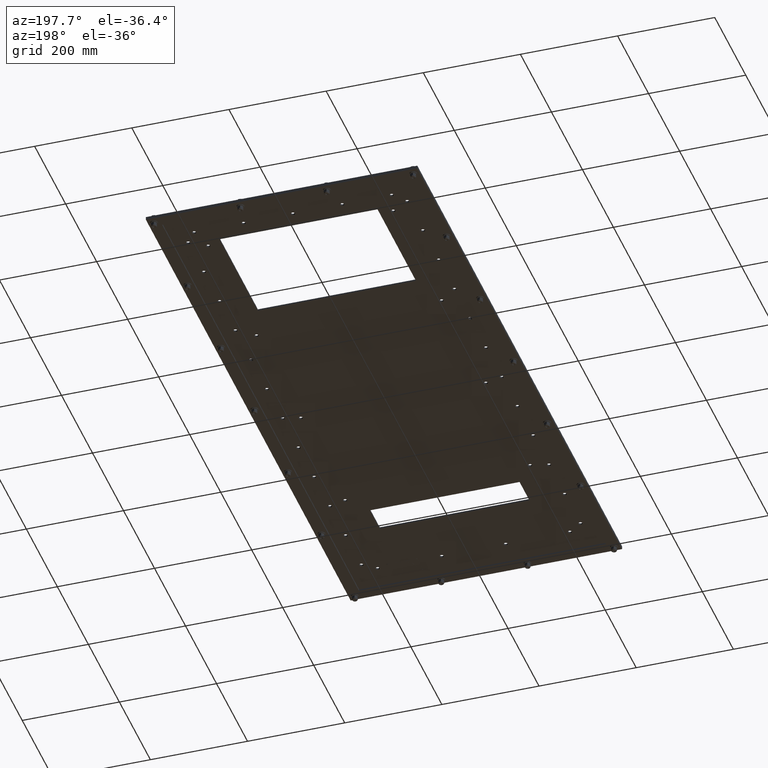
[diagram: clean part render]
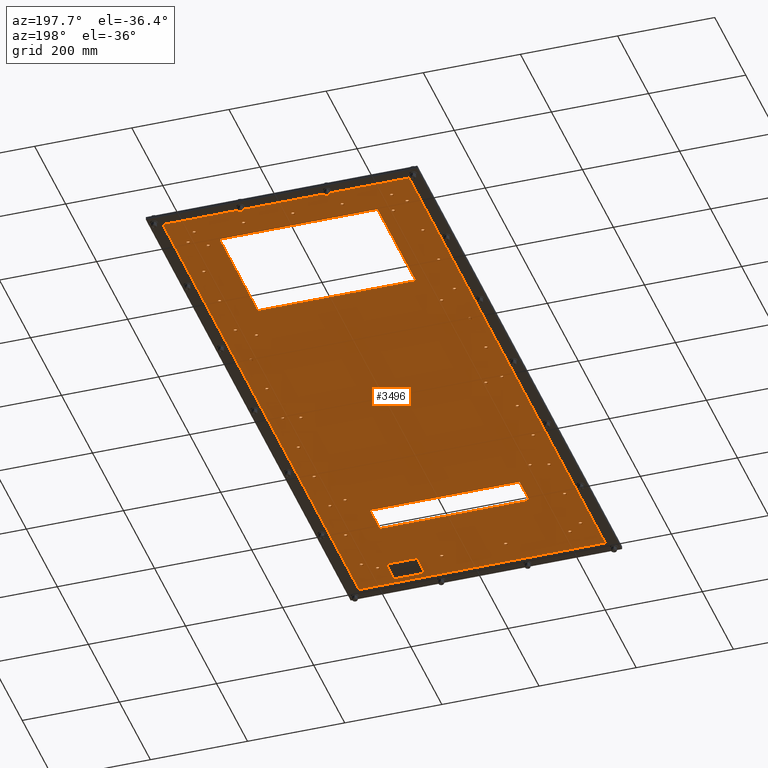
[diagram: same view with one face highlighted and labeled with its STEP entity id]
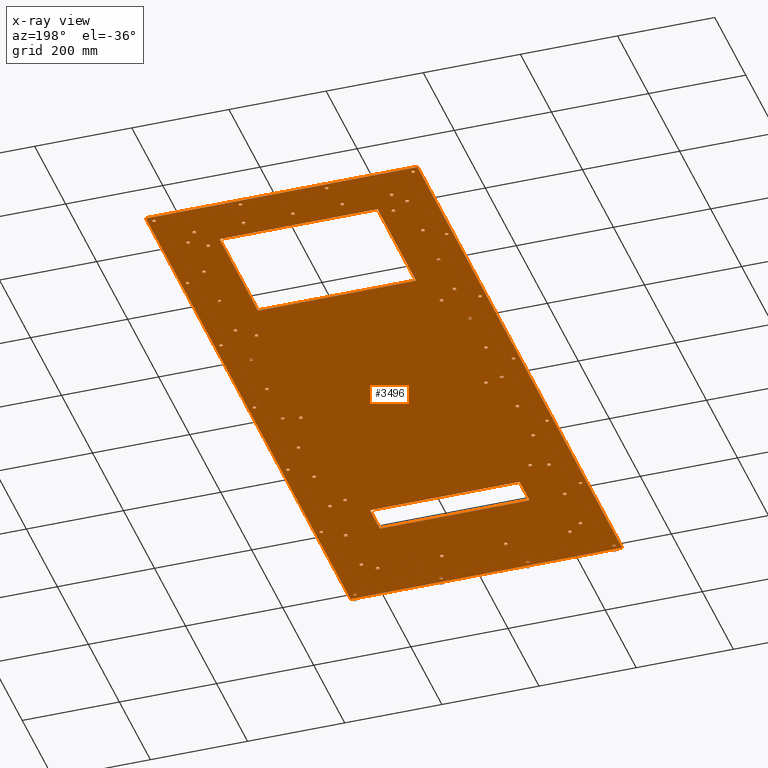
[diagram: x-ray of the same camera — body ghosted, the highlighted face saturated]
A machine part, auxiliary view. The second image highlights one B-rep face of the part: STEP entity #3496.
The next image is the same camera in x-ray: the body ghosted, the highlighted face saturated — about 0% of this face is hidden behind the body in this view.
In plain terms, the highlighted planar face has unit normal (0, 0, 1).
Its self-contained STEP definition (entity closure, byte-faithful):
#173=LINE('',#5165,#326);
#177=LINE('',#5173,#330);
#180=LINE('',#5179,#333);
#183=LINE('',#5184,#336);
#185=LINE('',#5189,#338);
#189=LINE('',#5197,#342);
#192=LINE('',#5203,#345);
#195=LINE('',#5208,#348);
#199=LINE('',#5427,#352);
#203=LINE('',#5434,#356);
#206=LINE('',#5440,#359);
#208=LINE('',#5443,#361);
#326=VECTOR('',#4161,9.75000000000001);
#330=VECTOR('',#4167,12.81);
#333=VECTOR('',#4172,9.75);
#336=VECTOR('',#4177,12.81);
#338=VECTOR('',#4181,2.5);
#342=VECTOR('',#4187,12.13);
#345=VECTOR('',#4192,2.5);
#348=VECTOR('',#4197,12.13);
#352=VECTOR('',#4455,52.);
#356=VECTOR('',#4461,22.);
#359=VECTOR('',#4466,52.);
#361=VECTOR('',#4470,22.);
#492=PLANE('',#3812);
#679=FACE_BOUND('',#1211,.T.);
#680=FACE_BOUND('',#1212,.T.);
#681=FACE_BOUND('',#1213,.T.);
#682=FACE_BOUND('',#1214,.T.);
#683=FACE_BOUND('',#1215,.T.);
#684=FACE_BOUND('',#1216,.T.);
#685=FACE_BOUND('',#1217,.T.);
#686=FACE_BOUND('',#1218,.T.);
#687=FACE_BOUND('',#1219,.T.);
#688=FACE_BOUND('',#1220,.T.);
#689=FACE_BOUND('',#1221,.T.);
#690=FACE_BOUND('',#1222,.T.);
#691=FACE_BOUND('',#1223,.T.);
#692=FACE_BOUND('',#1224,.T.);
#693=FACE_BOUND('',#1225,.T.);
#694=FACE_BOUND('',#1226,.T.);
#695=FACE_BOUND('',#1227,.T.);
#696=FACE_BOUND('',#1228,.T.);
#697=FACE_BOUND('',#1229,.T.);
#698=FACE_BOUND('',#1230,.T.);
#699=FACE_BOUND('',#1231,.T.);
#700=FACE_BOUND('',#1232,.T.);
#701=FACE_BOUND('',#1233,.T.);
#702=FACE_BOUND('',#1234,.T.);
#703=FACE_BOUND('',#1235,.T.);
#704=FACE_BOUND('',#1236,.T.);
#705=FACE_BOUND('',#1237,.T.);
#706=FACE_BOUND('',#1238,.T.);
#707=FACE_BOUND('',#1239,.T.);
#708=FACE_BOUND('',#1240,.T.);
#709=FACE_BOUND('',#1241,.T.);
#710=FACE_BOUND('',#1242,.T.);
#711=FACE_BOUND('',#1243,.T.);
#712=FACE_BOUND('',#1244,.T.);
#713=FACE_BOUND('',#1245,.T.);
#714=FACE_BOUND('',#1246,.T.);
#715=FACE_BOUND('',#1247,.T.);
#716=FACE_BOUND('',#1248,.T.);
#717=FACE_BOUND('',#1249,.T.);
#718=FACE_BOUND('',#1250,.T.);
#719=FACE_BOUND('',#1251,.T.);
#720=FACE_BOUND('',#1252,.T.);
#721=FACE_BOUND('',#1253,.T.);
#722=FACE_BOUND('',#1254,.T.);
#723=FACE_BOUND('',#1255,.T.);
#724=FACE_BOUND('',#1256,.T.);
#725=FACE_BOUND('',#1257,.T.);
#726=FACE_BOUND('',#1258,.T.);
#727=FACE_BOUND('',#1259,.T.);
#728=FACE_BOUND('',#1260,.T.);
#729=FACE_BOUND('',#1261,.T.);
#730=FACE_BOUND('',#1262,.T.);
#731=FACE_BOUND('',#1263,.T.);
#732=FACE_BOUND('',#1264,.T.);
#733=FACE_BOUND('',#1265,.T.);
#734=FACE_BOUND('',#1266,.T.);
#735=FACE_BOUND('',#1267,.T.);
#736=FACE_BOUND('',#1268,.T.);
#737=FACE_BOUND('',#1269,.T.);
#738=FACE_BOUND('',#1270,.T.);
#739=FACE_BOUND('',#1271,.T.);
#900=FACE_OUTER_BOUND('',#1210,.T.);
#1210=EDGE_LOOP('',(#2635,#2636,#2637,#2638));
#1211=EDGE_LOOP('',(#2639));
#1212=EDGE_LOOP('',(#2640));
#1213=EDGE_LOOP('',(#2641));
#1214=EDGE_LOOP('',(#2642));
#1215=EDGE_LOOP('',(#2643));
#1216=EDGE_LOOP('',(#2644));
#1217=EDGE_LOOP('',(#2645));
#1218=EDGE_LOOP('',(#2646));
#1219=EDGE_LOOP('',(#2647));
#1220=EDGE_LOOP('',(#2648));
#1221=EDGE_LOOP('',(#2649));
#1222=EDGE_LOOP('',(#2650));
#1223=EDGE_LOOP('',(#2651));
#1224=EDGE_LOOP('',(#2652));
#1225=EDGE_LOOP('',(#2653));
#1226=EDGE_LOOP('',(#2654));
#1227=EDGE_LOOP('',(#2655));
#1228=EDGE_LOOP('',(#2656,#2657,#2658,#2659));
#1229=EDGE_LOOP('',(#2660,#2661,#2662,#2663));
#1230=EDGE_LOOP('',(#2664));
#1231=EDGE_LOOP('',(#2665));
#1232=EDGE_LOOP('',(#2666));
#1233=EDGE_LOOP('',(#2667));
#1234=EDGE_LOOP('',(#2668));
#1235=EDGE_LOOP('',(#2669));
#1236=EDGE_LOOP('',(#2670));
#1237=EDGE_LOOP('',(#2671));
#1238=EDGE_LOOP('',(#2672));
#1239=EDGE_LOOP('',(#2673));
#1240=EDGE_LOOP('',(#2674));
#1241=EDGE_LOOP('',(#2675));
#1242=EDGE_LOOP('',(#2676));
#1243=EDGE_LOOP('',(#2677));
#1244=EDGE_LOOP('',(#2678));
#1245=EDGE_LOOP('',(#2679));
#1246=EDGE_LOOP('',(#2680));
#1247=EDGE_LOOP('',(#2681));
#1248=EDGE_LOOP('',(#2682));
#1249=EDGE_LOOP('',(#2683));
#1250=EDGE_LOOP('',(#2684));
#1251=EDGE_LOOP('',(#2685));
#1252=EDGE_LOOP('',(#2686));
#1253=EDGE_LOOP('',(#2687));
#1254=EDGE_LOOP('',(#2688));
#1255=EDGE_LOOP('',(#2689));
#1256=EDGE_LOOP('',(#2690));
#1257=EDGE_LOOP('',(#2691));
#1258=EDGE_LOOP('',(#2692));
#1259=EDGE_LOOP('',(#2693));
#1260=EDGE_LOOP('',(#2694));
#1261=EDGE_LOOP('',(#2695));
#1262=EDGE_LOOP('',(#2696));
#1263=EDGE_LOOP('',(#2697));
#1264=EDGE_LOOP('',(#2698));
#1265=EDGE_LOOP('',(#2699));
#1266=EDGE_LOOP('',(#2700));
#1267=EDGE_LOOP('',(#2701));
#1268=EDGE_LOOP('',(#2702));
#1269=EDGE_LOOP('',(#2703));
#1270=EDGE_LOOP('',(#2704));
#1271=EDGE_LOOP('',(#2705));
#1478=CIRCLE('',#3624,0.140625);
#1480=CIRCLE('',#3627,0.140625);
#1482=CIRCLE('',#3630,0.140625);
#1484=CIRCLE('',#3633,0.140625);
#1486=CIRCLE('',#3636,0.140625);
#1488=CIRCLE('',#3639,0.140625);
#1490=CIRCLE('',#3642,0.140625);
#1492=CIRCLE('',#3645,0.140625);
#1494=CIRCLE('',#3648,0.140625);
#1496=CIRCLE('',#3651,0.140625);
#1498=CIRCLE('',#3654,0.140625);
#1500=CIRCLE('',#3657,0.140625);
#1502=CIRCLE('',#3660,0.140625);
#1504=CIRCLE('',#3663,0.140625);
#1506=CIRCLE('',#3666,0.140625);
#1508=CIRCLE('',#3669,0.140625);
#1510=CIRCLE('',#3672,0.140625);
#1511=CIRCLE('',#3682,0.156);
#1513=CIRCLE('',#3685,0.156);
#1515=CIRCLE('',#3688,0.156);
#1517=CIRCLE('',#3691,0.156);
#1519=CIRCLE('',#3694,0.156);
#1521=CIRCLE('',#3697,0.156);
#1523=CIRCLE('',#3700,0.156);
#1525=CIRCLE('',#3703,0.156);
#1527=CIRCLE('',#3706,0.156);
#1529=CIRCLE('',#3709,0.156);
#1531=CIRCLE('',#3712,0.156);
#1533=CIRCLE('',#3715,0.156);
#1535=CIRCLE('',#3718,0.156);
#1537=CIRCLE('',#3721,0.156);
#1539=CIRCLE('',#3724,0.156);
#1541=CIRCLE('',#3727,0.156);
#1543=CIRCLE('',#3730,0.156);
#1545=CIRCLE('',#3733,0.156);
#1547=CIRCLE('',#3736,0.156);
#1549=CIRCLE('',#3739,0.156);
#1551=CIRCLE('',#3742,0.156);
#1553=CIRCLE('',#3745,0.156);
#1555=CIRCLE('',#3748,0.156);
#1557=CIRCLE('',#3751,0.156);
#1559=CIRCLE('',#3754,0.156);
#1561=CIRCLE('',#3757,0.156);
#1563=CIRCLE('',#3760,0.156);
#1565=CIRCLE('',#3763,0.156);
#1567=CIRCLE('',#3766,0.156);
#1569=CIRCLE('',#3769,0.156);
#1571=CIRCLE('',#3772,0.156);
#1573=CIRCLE('',#3775,0.156);
#1575=CIRCLE('',#3778,0.156);
#1577=CIRCLE('',#3781,0.156);
#1579=CIRCLE('',#3784,0.156);
#1581=CIRCLE('',#3787,0.156);
#1583=CIRCLE('',#3790,0.155999999999999);
#1585=CIRCLE('',#3793,0.155999999999999);
#1587=CIRCLE('',#3796,0.155999999999999);
#1589=CIRCLE('',#3799,0.155999999999999);
#1591=CIRCLE('',#3802,0.155999999999999);
#1594=CIRCLE('',#3806,0.140625);
#1690=VERTEX_POINT('',#5080);
#1692=VERTEX_POINT('',#5085);
#1694=VERTEX_POINT('',#5090);
#1696=VERTEX_POINT('',#5095);
#1698=VERTEX_POINT('',#5100);
#1700=VERTEX_POINT('',#5105);
#1702=VERTEX_POINT('',#5110);
#1704=VERTEX_POINT('',#5115);
#1706=VERTEX_POINT('',#5120);
#1708=VERTEX_POINT('',#5125);
#1710=VERTEX_POINT('',#5130);
#1712=VERTEX_POINT('',#5135);
#1714=VERTEX_POINT('',#5140);
#1716=VERTEX_POINT('',#5145);
#1718=VERTEX_POINT('',#5150);
#1720=VERTEX_POINT('',#5155);
#1722=VERTEX_POINT('',#5160);
#1723=VERTEX_POINT('',#5163);
#1724=VERTEX_POINT('',#5164);
#1727=VERTEX_POINT('',#5172);
#1729=VERTEX_POINT('',#5178);
#1731=VERTEX_POINT('',#5187);
#1732=VERTEX_POINT('',#5188);
#1735=VERTEX_POINT('',#5196);
#1737=VERTEX_POINT('',#5202);
#1739=VERTEX_POINT('',#5211);
#1741=VERTEX_POINT('',#5216);
#1743=VERTEX_POINT('',#5221);
#1745=VERTEX_POINT('',#5226);
#1747=VERTEX_POINT('',#5231);
#1749=VERTEX_POINT('',#5236);
#1751=VERTEX_POINT('',#5241);
#1753=VERTEX_POINT('',#5246);
#1755=VERTEX_POINT('',#5251);
#1757=VERTEX_POINT('',#5256);
#1759=VERTEX_POINT('',#5261);
#1761=VERTEX_POINT('',#5266);
#1763=VERTEX_POINT('',#5271);
#1765=VERTEX_POINT('',#5276);
#1767=VERTEX_POINT('',#5281);
#1769=VERTEX_POINT('',#5286);
#1771=VERTEX_POINT('',#5291);
#1773=VERTEX_POINT('',#5296);
#1775=VERTEX_POINT('',#5301);
#1777=VERTEX_POINT('',#5306);
#1779=VERTEX_POINT('',#5311);
#1781=VERTEX_POINT('',#5316);
#1783=VERTEX_POINT('',#5321);
#1785=VERTEX_POINT('',#5326);
#1787=VERTEX_POINT('',#5331);
#1789=VERTEX_POINT('',#5336);
#1791=VERTEX_POINT('',#5341);
#1793=VERTEX_POINT('',#5346);
#1795=VERTEX_POINT('',#5351);
#1797=VERTEX_POINT('',#5356);
#1799=VERTEX_POINT('',#5361);
#1801=VERTEX_POINT('',#5366);
#1803=VERTEX_POINT('',#5371);
#1805=VERTEX_POINT('',#5376);
#1807=VERTEX_POINT('',#5381);
#1809=VERTEX_POINT('',#5386);
#1811=VERTEX_POINT('',#5391);
#1813=VERTEX_POINT('',#5396);
#1815=VERTEX_POINT('',#5401);
#1817=VERTEX_POINT('',#5406);
#1819=VERTEX_POINT('',#5411);
#1822=VERTEX_POINT('',#5418);
#1825=VERTEX_POINT('',#5424);
#1826=VERTEX_POINT('',#5426);
#1828=VERTEX_POINT('',#5432);
#1830=VERTEX_POINT('',#5438);
#2008=EDGE_CURVE('',#1690,#1690,#1478,.T.);
#2010=EDGE_CURVE('',#1692,#1692,#1480,.T.);
#2012=EDGE_CURVE('',#1694,#1694,#1482,.T.);
#2014=EDGE_CURVE('',#1696,#1696,#1484,.T.);
#2016=EDGE_CURVE('',#1698,#1698,#1486,.T.);
#2018=EDGE_CURVE('',#1700,#1700,#1488,.T.);
#2020=EDGE_CURVE('',#1702,#1702,#1490,.T.);
#2022=EDGE_CURVE('',#1704,#1704,#1492,.T.);
#2024=EDGE_CURVE('',#1706,#1706,#1494,.T.);
#2026=EDGE_CURVE('',#1708,#1708,#1496,.T.);
#2028=EDGE_CURVE('',#1710,#1710,#1498,.T.);
#2030=EDGE_CURVE('',#1712,#1712,#1500,.T.);
#2032=EDGE_CURVE('',#1714,#1714,#1502,.T.);
#2034=EDGE_CURVE('',#1716,#1716,#1504,.T.);
#2036=EDGE_CURVE('',#1718,#1718,#1506,.T.);
#2038=EDGE_CURVE('',#1720,#1720,#1508,.T.);
#2040=EDGE_CURVE('',#1722,#1722,#1510,.T.);
#2041=EDGE_CURVE('',#1723,#1724,#173,.T.);
#2045=EDGE_CURVE('',#1724,#1727,#177,.T.);
#2048=EDGE_CURVE('',#1727,#1729,#180,.T.);
#2051=EDGE_CURVE('',#1729,#1723,#183,.T.);
#2053=EDGE_CURVE('',#1731,#1732,#185,.T.);
#2057=EDGE_CURVE('',#1732,#1735,#189,.T.);
#2060=EDGE_CURVE('',#1735,#1737,#192,.T.);
#2063=EDGE_CURVE('',#1737,#1731,#195,.T.);
#2065=EDGE_CURVE('',#1739,#1739,#1511,.T.);
#2067=EDGE_CURVE('',#1741,#1741,#1513,.T.);
#2069=EDGE_CURVE('',#1743,#1743,#1515,.T.);
#2071=EDGE_CURVE('',#1745,#1745,#1517,.T.);
#2073=EDGE_CURVE('',#1747,#1747,#1519,.T.);
#2075=EDGE_CURVE('',#1749,#1749,#1521,.T.);
#2077=EDGE_CURVE('',#1751,#1751,#1523,.T.);
#2079=EDGE_CURVE('',#1753,#1753,#1525,.T.);
#2081=EDGE_CURVE('',#1755,#1755,#1527,.T.);
#2083=EDGE_CURVE('',#1757,#1757,#1529,.T.);
#2085=EDGE_CURVE('',#1759,#1759,#1531,.T.);
#2087=EDGE_CURVE('',#1761,#1761,#1533,.T.);
#2089=EDGE_CURVE('',#1763,#1763,#1535,.T.);
#2091=EDGE_CURVE('',#1765,#1765,#1537,.T.);
#2093=EDGE_CURVE('',#1767,#1767,#1539,.T.);
#2095=EDGE_CURVE('',#1769,#1769,#1541,.T.);
#2097=EDGE_CURVE('',#1771,#1771,#1543,.T.);
#2099=EDGE_CURVE('',#1773,#1773,#1545,.T.);
#2101=EDGE_CURVE('',#1775,#1775,#1547,.T.);
#2103=EDGE_CURVE('',#1777,#1777,#1549,.T.);
#2105=EDGE_CURVE('',#1779,#1779,#1551,.T.);
#2107=EDGE_CURVE('',#1781,#1781,#1553,.T.);
#2109=EDGE_CURVE('',#1783,#1783,#1555,.T.);
#2111=EDGE_CURVE('',#1785,#1785,#1557,.T.);
#2113=EDGE_CURVE('',#1787,#1787,#1559,.T.);
#2115=EDGE_CURVE('',#1789,#1789,#1561,.T.);
#2117=EDGE_CURVE('',#1791,#1791,#1563,.T.);
#2119=EDGE_CURVE('',#1793,#1793,#1565,.T.);
#2121=EDGE_CURVE('',#1795,#1795,#1567,.T.);
#2123=EDGE_CURVE('',#1797,#1797,#1569,.T.);
#2125=EDGE_CURVE('',#1799,#1799,#1571,.T.);
#2127=EDGE_CURVE('',#1801,#1801,#1573,.T.);
#2129=EDGE_CURVE('',#1803,#1803,#1575,.T.);
#2131=EDGE_CURVE('',#1805,#1805,#1577,.T.);
#2133=EDGE_CURVE('',#1807,#1807,#1579,.T.);
#2135=EDGE_CURVE('',#1809,#1809,#1581,.T.);
#2137=EDGE_CURVE('',#1811,#1811,#1583,.T.);
#2139=EDGE_CURVE('',#1813,#1813,#1585,.T.);
#2141=EDGE_CURVE('',#1815,#1815,#1587,.T.);
#2143=EDGE_CURVE('',#1817,#1817,#1589,.T.);
#2145=EDGE_CURVE('',#1819,#1819,#1591,.T.);
#2148=EDGE_CURVE('',#1822,#1822,#1594,.T.);
#2151=EDGE_CURVE('',#1826,#1825,#199,.T.);
#2155=EDGE_CURVE('',#1825,#1828,#203,.T.);
#2158=EDGE_CURVE('',#1828,#1830,#206,.T.);
#2160=EDGE_CURVE('',#1830,#1826,#208,.T.);
#2635=ORIENTED_EDGE('',*,*,#2160,.T.);
#2636=ORIENTED_EDGE('',*,*,#2151,.T.);
#2637=ORIENTED_EDGE('',*,*,#2155,.T.);
#2638=ORIENTED_EDGE('',*,*,#2158,.T.);
#2639=ORIENTED_EDGE('',*,*,#2008,.T.);
#2640=ORIENTED_EDGE('',*,*,#2010,.T.);
#2641=ORIENTED_EDGE('',*,*,#2012,.T.);
#2642=ORIENTED_EDGE('',*,*,#2014,.T.);
#2643=ORIENTED_EDGE('',*,*,#2016,.T.);
#2644=ORIENTED_EDGE('',*,*,#2018,.T.);
#2645=ORIENTED_EDGE('',*,*,#2020,.T.);
#2646=ORIENTED_EDGE('',*,*,#2022,.T.);
#2647=ORIENTED_EDGE('',*,*,#2024,.T.);
#2648=ORIENTED_EDGE('',*,*,#2026,.T.);
#2649=ORIENTED_EDGE('',*,*,#2028,.T.);
#2650=ORIENTED_EDGE('',*,*,#2030,.T.);
#2651=ORIENTED_EDGE('',*,*,#2032,.T.);
#2652=ORIENTED_EDGE('',*,*,#2034,.T.);
#2653=ORIENTED_EDGE('',*,*,#2036,.T.);
#2654=ORIENTED_EDGE('',*,*,#2038,.T.);
#2655=ORIENTED_EDGE('',*,*,#2040,.T.);
#2656=ORIENTED_EDGE('',*,*,#2041,.T.);
#2657=ORIENTED_EDGE('',*,*,#2045,.T.);
#2658=ORIENTED_EDGE('',*,*,#2048,.T.);
#2659=ORIENTED_EDGE('',*,*,#2051,.T.);
#2660=ORIENTED_EDGE('',*,*,#2053,.T.);
#2661=ORIENTED_EDGE('',*,*,#2057,.T.);
#2662=ORIENTED_EDGE('',*,*,#2060,.T.);
#2663=ORIENTED_EDGE('',*,*,#2063,.T.);
#2664=ORIENTED_EDGE('',*,*,#2065,.T.);
#2665=ORIENTED_EDGE('',*,*,#2067,.T.);
#2666=ORIENTED_EDGE('',*,*,#2069,.T.);
#2667=ORIENTED_EDGE('',*,*,#2071,.T.);
#2668=ORIENTED_EDGE('',*,*,#2073,.T.);
#2669=ORIENTED_EDGE('',*,*,#2075,.T.);
#2670=ORIENTED_EDGE('',*,*,#2077,.T.);
#2671=ORIENTED_EDGE('',*,*,#2079,.T.);
#2672=ORIENTED_EDGE('',*,*,#2081,.T.);
#2673=ORIENTED_EDGE('',*,*,#2083,.T.);
#2674=ORIENTED_EDGE('',*,*,#2085,.T.);
#2675=ORIENTED_EDGE('',*,*,#2087,.T.);
#2676=ORIENTED_EDGE('',*,*,#2089,.T.);
#2677=ORIENTED_EDGE('',*,*,#2091,.T.);
#2678=ORIENTED_EDGE('',*,*,#2093,.T.);
#2679=ORIENTED_EDGE('',*,*,#2095,.T.);
#2680=ORIENTED_EDGE('',*,*,#2097,.T.);
#2681=ORIENTED_EDGE('',*,*,#2099,.T.);
#2682=ORIENTED_EDGE('',*,*,#2101,.T.);
#2683=ORIENTED_EDGE('',*,*,#2103,.T.);
#2684=ORIENTED_EDGE('',*,*,#2105,.T.);
#2685=ORIENTED_EDGE('',*,*,#2107,.T.);
#2686=ORIENTED_EDGE('',*,*,#2109,.T.);
#2687=ORIENTED_EDGE('',*,*,#2111,.T.);
#2688=ORIENTED_EDGE('',*,*,#2113,.T.);
#2689=ORIENTED_EDGE('',*,*,#2115,.T.);
#2690=ORIENTED_EDGE('',*,*,#2117,.T.);
#2691=ORIENTED_EDGE('',*,*,#2119,.T.);
#2692=ORIENTED_EDGE('',*,*,#2121,.T.);
#2693=ORIENTED_EDGE('',*,*,#2123,.T.);
#2694=ORIENTED_EDGE('',*,*,#2125,.T.);
#2695=ORIENTED_EDGE('',*,*,#2127,.T.);
#2696=ORIENTED_EDGE('',*,*,#2129,.T.);
#2697=ORIENTED_EDGE('',*,*,#2131,.T.);
#2698=ORIENTED_EDGE('',*,*,#2133,.T.);
#2699=ORIENTED_EDGE('',*,*,#2135,.T.);
#2700=ORIENTED_EDGE('',*,*,#2137,.T.);
#2701=ORIENTED_EDGE('',*,*,#2139,.T.);
#2702=ORIENTED_EDGE('',*,*,#2141,.T.);
#2703=ORIENTED_EDGE('',*,*,#2143,.T.);
#2704=ORIENTED_EDGE('',*,*,#2145,.T.);
#2705=ORIENTED_EDGE('',*,*,#2148,.T.);
#3496=ADVANCED_FACE('',(#900,#679,#680,#681,#682,#683,#684,#685,#686,#687,
#688,#689,#690,#691,#692,#693,#694,#695,#696,#697,#698,#699,#700,#701,#702,
#703,#704,#705,#706,#707,#708,#709,#710,#711,#712,#713,#714,#715,#716,#717,
#718,#719,#720,#721,#722,#723,#724,#725,#726,#727,#728,#729,#730,#731,#732,
#733,#734,#735,#736,#737,#738,#739),#492,.F.);
#3624=AXIS2_PLACEMENT_3D('',#5081,#4061,#4062);
#3627=AXIS2_PLACEMENT_3D('',#5086,#4067,#4068);
#3630=AXIS2_PLACEMENT_3D('',#5091,#4073,#4074);
#3633=AXIS2_PLACEMENT_3D('',#5096,#4079,#4080);
#3636=AXIS2_PLACEMENT_3D('',#5101,#4085,#4086);
#3639=AXIS2_PLACEMENT_3D('',#5106,#4091,#4092);
#3642=AXIS2_PLACEMENT_3D('',#5111,#4097,#4098);
#3645=AXIS2_PLACEMENT_3D('',#5116,#4103,#4104);
#3648=AXIS2_PLACEMENT_3D('',#5121,#4109,#4110);
#3651=AXIS2_PLACEMENT_3D('',#5126,#4115,#4116);
#3654=AXIS2_PLACEMENT_3D('',#5131,#4121,#4122);
#3657=AXIS2_PLACEMENT_3D('',#5136,#4127,#4128);
#3660=AXIS2_PLACEMENT_3D('',#5141,#4133,#4134);
#3663=AXIS2_PLACEMENT_3D('',#5146,#4139,#4140);
#3666=AXIS2_PLACEMENT_3D('',#5151,#4145,#4146);
#3669=AXIS2_PLACEMENT_3D('',#5156,#4151,#4152);
#3672=AXIS2_PLACEMENT_3D('',#5161,#4157,#4158);
#3682=AXIS2_PLACEMENT_3D('',#5212,#4201,#4202);
#3685=AXIS2_PLACEMENT_3D('',#5217,#4207,#4208);
#3688=AXIS2_PLACEMENT_3D('',#5222,#4213,#4214);
#3691=AXIS2_PLACEMENT_3D('',#5227,#4219,#4220);
#3694=AXIS2_PLACEMENT_3D('',#5232,#4225,#4226);
#3697=AXIS2_PLACEMENT_3D('',#5237,#4231,#4232);
#3700=AXIS2_PLACEMENT_3D('',#5242,#4237,#4238);
#3703=AXIS2_PLACEMENT_3D('',#5247,#4243,#4244);
#3706=AXIS2_PLACEMENT_3D('',#5252,#4249,#4250);
#3709=AXIS2_PLACEMENT_3D('',#5257,#4255,#4256);
#3712=AXIS2_PLACEMENT_3D('',#5262,#4261,#4262);
#3715=AXIS2_PLACEMENT_3D('',#5267,#4267,#4268);
#3718=AXIS2_PLACEMENT_3D('',#5272,#4273,#4274);
#3721=AXIS2_PLACEMENT_3D('',#5277,#4279,#4280);
#3724=AXIS2_PLACEMENT_3D('',#5282,#4285,#4286);
#3727=AXIS2_PLACEMENT_3D('',#5287,#4291,#4292);
#3730=AXIS2_PLACEMENT_3D('',#5292,#4297,#4298);
#3733=AXIS2_PLACEMENT_3D('',#5297,#4303,#4304);
#3736=AXIS2_PLACEMENT_3D('',#5302,#4309,#4310);
#3739=AXIS2_PLACEMENT_3D('',#5307,#4315,#4316);
#3742=AXIS2_PLACEMENT_3D('',#5312,#4321,#4322);
#3745=AXIS2_PLACEMENT_3D('',#5317,#4327,#4328);
#3748=AXIS2_PLACEMENT_3D('',#5322,#4333,#4334);
#3751=AXIS2_PLACEMENT_3D('',#5327,#4339,#4340);
#3754=AXIS2_PLACEMENT_3D('',#5332,#4345,#4346);
#3757=AXIS2_PLACEMENT_3D('',#5337,#4351,#4352);
#3760=AXIS2_PLACEMENT_3D('',#5342,#4357,#4358);
#3763=AXIS2_PLACEMENT_3D('',#5347,#4363,#4364);
#3766=AXIS2_PLACEMENT_3D('',#5352,#4369,#4370);
#3769=AXIS2_PLACEMENT_3D('',#5357,#4375,#4376);
#3772=AXIS2_PLACEMENT_3D('',#5362,#4381,#4382);
#3775=AXIS2_PLACEMENT_3D('',#5367,#4387,#4388);
#3778=AXIS2_PLACEMENT_3D('',#5372,#4393,#4394);
#3781=AXIS2_PLACEMENT_3D('',#5377,#4399,#4400);
#3784=AXIS2_PLACEMENT_3D('',#5382,#4405,#4406);
#3787=AXIS2_PLACEMENT_3D('',#5387,#4411,#4412);
#3790=AXIS2_PLACEMENT_3D('',#5392,#4417,#4418);
#3793=AXIS2_PLACEMENT_3D('',#5397,#4423,#4424);
#3796=AXIS2_PLACEMENT_3D('',#5402,#4429,#4430);
#3799=AXIS2_PLACEMENT_3D('',#5407,#4435,#4436);
#3802=AXIS2_PLACEMENT_3D('',#5412,#4441,#4442);
#3806=AXIS2_PLACEMENT_3D('',#5419,#4449,#4450);
#3812=AXIS2_PLACEMENT_3D('',#5445,#4473,#4474);
#4061=DIRECTION('center_axis',(0.,0.,1.));
#4062=DIRECTION('ref_axis',(1.,0.,0.));
#4067=DIRECTION('center_axis',(0.,0.,1.));
#4068=DIRECTION('ref_axis',(1.,0.,0.));
#4073=DIRECTION('center_axis',(0.,0.,1.));
#4074=DIRECTION('ref_axis',(1.,0.,0.));
#4079=DIRECTION('center_axis',(0.,0.,1.));
#4080=DIRECTION('ref_axis',(1.,0.,0.));
#4085=DIRECTION('center_axis',(0.,0.,1.));
#4086=DIRECTION('ref_axis',(1.,0.,0.));
#4091=DIRECTION('center_axis',(0.,0.,1.));
#4092=DIRECTION('ref_axis',(1.,0.,0.));
#4097=DIRECTION('center_axis',(0.,0.,1.));
#4098=DIRECTION('ref_axis',(1.,0.,0.));
#4103=DIRECTION('center_axis',(0.,0.,1.));
#4104=DIRECTION('ref_axis',(1.,0.,0.));
#4109=DIRECTION('center_axis',(0.,0.,1.));
#4110=DIRECTION('ref_axis',(1.,0.,0.));
#4115=DIRECTION('center_axis',(0.,0.,1.));
#4116=DIRECTION('ref_axis',(1.,0.,0.));
#4121=DIRECTION('center_axis',(0.,0.,1.));
#4122=DIRECTION('ref_axis',(1.,0.,0.));
#4127=DIRECTION('center_axis',(0.,0.,1.));
#4128=DIRECTION('ref_axis',(1.,0.,0.));
#4133=DIRECTION('center_axis',(0.,0.,1.));
#4134=DIRECTION('ref_axis',(1.,0.,0.));
#4139=DIRECTION('center_axis',(0.,0.,1.));
#4140=DIRECTION('ref_axis',(1.,0.,0.));
#4145=DIRECTION('center_axis',(0.,0.,1.));
#4146=DIRECTION('ref_axis',(1.,0.,0.));
#4151=DIRECTION('center_axis',(0.,0.,1.));
#4152=DIRECTION('ref_axis',(1.,0.,0.));
#4157=DIRECTION('center_axis',(0.,0.,1.));
#4158=DIRECTION('ref_axis',(1.,0.,0.));
#4161=DIRECTION('',(0.,-1.,0.));
#4167=DIRECTION('',(1.,0.,0.));
#4172=DIRECTION('',(0.,1.,0.));
#4177=DIRECTION('',(-1.,4.36754464560844E-16,0.));
#4181=DIRECTION('',(2.79741234551221E-16,-1.,0.));
#4187=DIRECTION('',(1.,0.,0.));
#4192=DIRECTION('',(0.,1.,0.));
#4197=DIRECTION('',(-1.,0.,0.));
#4201=DIRECTION('center_axis',(0.,0.,1.));
#4202=DIRECTION('ref_axis',(-1.,0.,0.));
#4207=DIRECTION('center_axis',(0.,0.,1.));
#4208=DIRECTION('ref_axis',(-1.,0.,0.));
#4213=DIRECTION('center_axis',(0.,0.,1.));
#4214=DIRECTION('ref_axis',(-1.,0.,0.));
#4219=DIRECTION('center_axis',(0.,0.,1.));
#4220=DIRECTION('ref_axis',(-1.,0.,0.));
#4225=DIRECTION('center_axis',(0.,0.,1.));
#4226=DIRECTION('ref_axis',(-1.,0.,0.));
#4231=DIRECTION('center_axis',(0.,0.,1.));
#4232=DIRECTION('ref_axis',(-1.,0.,0.));
#4237=DIRECTION('center_axis',(0.,0.,1.));
#4238=DIRECTION('ref_axis',(-1.,0.,0.));
#4243=DIRECTION('center_axis',(0.,0.,1.));
#4244=DIRECTION('ref_axis',(-1.,0.,0.));
#4249=DIRECTION('center_axis',(0.,0.,1.));
#4250=DIRECTION('ref_axis',(-1.,0.,0.));
#4255=DIRECTION('center_axis',(0.,0.,1.));
#4256=DIRECTION('ref_axis',(-1.,0.,0.));
#4261=DIRECTION('center_axis',(0.,0.,1.));
#4262=DIRECTION('ref_axis',(-1.,0.,0.));
#4267=DIRECTION('center_axis',(0.,0.,1.));
#4268=DIRECTION('ref_axis',(-1.,0.,0.));
#4273=DIRECTION('center_axis',(0.,0.,1.));
#4274=DIRECTION('ref_axis',(-1.,0.,0.));
#4279=DIRECTION('center_axis',(0.,0.,1.));
#4280=DIRECTION('ref_axis',(-1.,0.,0.));
#4285=DIRECTION('center_axis',(0.,0.,1.));
#4286=DIRECTION('ref_axis',(-1.,0.,0.));
#4291=DIRECTION('center_axis',(0.,0.,1.));
#4292=DIRECTION('ref_axis',(-1.,0.,0.));
#4297=DIRECTION('center_axis',(0.,0.,1.));
#4298=DIRECTION('ref_axis',(-1.,0.,0.));
#4303=DIRECTION('center_axis',(0.,0.,1.));
#4304=DIRECTION('ref_axis',(-1.,0.,0.));
#4309=DIRECTION('center_axis',(0.,0.,1.));
#4310=DIRECTION('ref_axis',(-1.,0.,0.));
#4315=DIRECTION('center_axis',(0.,0.,1.));
#4316=DIRECTION('ref_axis',(-1.,0.,0.));
#4321=DIRECTION('center_axis',(0.,0.,1.));
#4322=DIRECTION('ref_axis',(-1.,0.,0.));
#4327=DIRECTION('center_axis',(0.,0.,1.));
#4328=DIRECTION('ref_axis',(-1.,0.,0.));
#4333=DIRECTION('center_axis',(0.,0.,1.));
#4334=DIRECTION('ref_axis',(-1.,0.,0.));
#4339=DIRECTION('center_axis',(0.,0.,1.));
#4340=DIRECTION('ref_axis',(-1.,0.,0.));
#4345=DIRECTION('center_axis',(0.,0.,1.));
#4346=DIRECTION('ref_axis',(-1.,0.,0.));
#4351=DIRECTION('center_axis',(0.,0.,1.));
#4352=DIRECTION('ref_axis',(-1.,0.,0.));
#4357=DIRECTION('center_axis',(0.,0.,1.));
#4358=DIRECTION('ref_axis',(-1.,0.,0.));
#4363=DIRECTION('center_axis',(0.,0.,1.));
#4364=DIRECTION('ref_axis',(-1.,0.,0.));
#4369=DIRECTION('center_axis',(0.,0.,1.));
#4370=DIRECTION('ref_axis',(-1.,0.,0.));
#4375=DIRECTION('center_axis',(0.,0.,1.));
#4376=DIRECTION('ref_axis',(-1.,0.,0.));
#4381=DIRECTION('center_axis',(0.,0.,1.));
#4382=DIRECTION('ref_axis',(-1.,0.,0.));
#4387=DIRECTION('center_axis',(0.,0.,1.));
#4388=DIRECTION('ref_axis',(-1.,0.,0.));
#4393=DIRECTION('center_axis',(0.,0.,1.));
#4394=DIRECTION('ref_axis',(-1.,0.,0.));
#4399=DIRECTION('center_axis',(0.,0.,1.));
#4400=DIRECTION('ref_axis',(-1.,0.,0.));
#4405=DIRECTION('center_axis',(0.,0.,1.));
#4406=DIRECTION('ref_axis',(-1.,0.,0.));
#4411=DIRECTION('center_axis',(0.,0.,1.));
#4412=DIRECTION('ref_axis',(-1.,0.,0.));
#4417=DIRECTION('center_axis',(0.,0.,1.));
#4418=DIRECTION('ref_axis',(-1.,0.,0.));
#4423=DIRECTION('center_axis',(0.,0.,1.));
#4424=DIRECTION('ref_axis',(-1.,0.,0.));
#4429=DIRECTION('center_axis',(0.,0.,1.));
#4430=DIRECTION('ref_axis',(-1.,0.,0.));
#4435=DIRECTION('center_axis',(0.,0.,1.));
#4436=DIRECTION('ref_axis',(-1.,0.,0.));
#4441=DIRECTION('center_axis',(0.,0.,1.));
#4442=DIRECTION('ref_axis',(-1.,0.,0.));
#4449=DIRECTION('center_axis',(0.,0.,1.));
#4450=DIRECTION('ref_axis',(1.,0.,0.));
#4455=DIRECTION('',(5.37963912598501E-17,-1.,0.));
#4461=DIRECTION('',(-1.,0.,0.));
#4466=DIRECTION('',(-2.151855650394E-16,1.,0.));
#4470=DIRECTION('',(1.,0.,0.));
#4473=DIRECTION('center_axis',(0.,0.,1.));
#4474=DIRECTION('ref_axis',(1.,0.,0.));
#5080=CARTESIAN_POINT('',(10.640625,-25.5,0.));
#5081=CARTESIAN_POINT('Origin',(10.5,-25.5,0.));
#5085=CARTESIAN_POINT('',(3.640625,-25.5,0.));
#5086=CARTESIAN_POINT('Origin',(3.5,-25.5,0.));
#5090=CARTESIAN_POINT('',(-3.359375,-25.5,0.));
#5091=CARTESIAN_POINT('Origin',(-3.5,-25.5,0.));
#5095=CARTESIAN_POINT('',(-10.359375,-25.5,0.));
#5096=CARTESIAN_POINT('Origin',(-10.5,-25.5,0.));
#5100=CARTESIAN_POINT('',(10.640625,-17.,0.));
#5101=CARTESIAN_POINT('Origin',(10.5,-17.,0.));
#5105=CARTESIAN_POINT('',(-10.359375,-17.,0.));
#5106=CARTESIAN_POINT('Origin',(-10.5,-17.,0.));
#5110=CARTESIAN_POINT('',(10.640625,-8.5,0.));
#5111=CARTESIAN_POINT('Origin',(10.5,-8.5,0.));
#5115=CARTESIAN_POINT('',(-10.359375,-8.5,0.));
#5116=CARTESIAN_POINT('Origin',(-10.5,-8.5,0.));
#5120=CARTESIAN_POINT('',(10.640625,0.,0.));
#5121=CARTESIAN_POINT('Origin',(10.5,0.,0.));
#5125=CARTESIAN_POINT('',(-10.359375,0.,0.));
#5126=CARTESIAN_POINT('Origin',(-10.5,0.,0.));
#5130=CARTESIAN_POINT('',(10.640625,8.5,0.));
#5131=CARTESIAN_POINT('Origin',(10.5,8.5,0.));
#5135=CARTESIAN_POINT('',(-10.359375,8.5,0.));
#5136=CARTESIAN_POINT('Origin',(-10.5,8.5,0.));
#5140=CARTESIAN_POINT('',(10.640625,17.,0.));
#5141=CARTESIAN_POINT('Origin',(10.5,17.,0.));
#5145=CARTESIAN_POINT('',(-10.359375,17.,0.));
#5146=CARTESIAN_POINT('Origin',(-10.5,17.,0.));
#5150=CARTESIAN_POINT('',(10.640625,25.5,0.));
#5151=CARTESIAN_POINT('Origin',(10.5,25.5,0.));
#5155=CARTESIAN_POINT('',(3.64062499999999,25.5,0.));
#5156=CARTESIAN_POINT('Origin',(3.49999999999999,25.5,0.));
#5160=CARTESIAN_POINT('',(-3.35937500000001,25.5,0.));
#5161=CARTESIAN_POINT('Origin',(-3.50000000000001,25.5,0.));
#5163=CARTESIAN_POINT('',(-6.4,21.69,-2.18547839493141E-17));
#5164=CARTESIAN_POINT('',(-6.4,11.94,-2.18547839493141E-17));
#5165=CARTESIAN_POINT('',(-6.4,10.845,0.));
#5172=CARTESIAN_POINT('',(6.41,11.94,-2.18547839493141E-17));
#5173=CARTESIAN_POINT('',(-3.2,11.94,0.));
#5178=CARTESIAN_POINT('',(6.41,21.69,-2.18547839493141E-17));
#5179=CARTESIAN_POINT('',(6.41,5.97,0.));
#5184=CARTESIAN_POINT('',(3.205,21.69,0.));
#5187=CARTESIAN_POINT('',(-6.06,-15.44,-4.37095678986282E-17));
#5188=CARTESIAN_POINT('',(-6.05999999999999,-17.94,-4.37095678986282E-17));
#5189=CARTESIAN_POINT('',(-6.06,-7.72,0.));
#5196=CARTESIAN_POINT('',(6.07000000000001,-17.94,-4.37095678986282E-17));
#5197=CARTESIAN_POINT('',(-3.03,-17.94,0.));
#5202=CARTESIAN_POINT('',(6.07000000000001,-15.44,-4.37095678986282E-17));
#5203=CARTESIAN_POINT('',(6.07000000000001,-8.97,0.));
#5208=CARTESIAN_POINT('',(3.035,-15.44,0.));
#5211=CARTESIAN_POINT('',(7.946,-22.81,0.));
#5212=CARTESIAN_POINT('Origin',(7.79,-22.81,0.));
#5216=CARTESIAN_POINT('',(2.756,-22.81,0.));
#5217=CARTESIAN_POINT('Origin',(2.6,-22.81,0.));
#5221=CARTESIAN_POINT('',(-2.434,-22.81,0.));
#5222=CARTESIAN_POINT('Origin',(-2.59,-22.81,0.));
#5226=CARTESIAN_POINT('',(-7.624,-22.81,0.));
#5227=CARTESIAN_POINT('Origin',(-7.78,-22.81,0.));
#5231=CARTESIAN_POINT('',(7.65600000000006,21.13,0.));
#5232=CARTESIAN_POINT('Origin',(7.50000000000006,21.13,0.));
#5236=CARTESIAN_POINT('',(-7.34399999999987,21.13,0.));
#5237=CARTESIAN_POINT('Origin',(-7.49999999999987,21.13,0.));
#5241=CARTESIAN_POINT('',(7.65600000000006,8.88,0.));
#5242=CARTESIAN_POINT('Origin',(7.50000000000007,8.88,0.));
#5246=CARTESIAN_POINT('',(-7.34399999999987,8.87999999999999,0.));
#5247=CARTESIAN_POINT('Origin',(-7.49999999999987,8.87999999999999,0.));
#5251=CARTESIAN_POINT('',(7.65600000000007,-2.37000000000001,0.));
#5252=CARTESIAN_POINT('Origin',(7.50000000000007,-2.37000000000001,0.));
#5256=CARTESIAN_POINT('',(7.656,-13.62,0.));
#5257=CARTESIAN_POINT('Origin',(7.5,-13.62,0.));
#5261=CARTESIAN_POINT('',(-7.34399999999993,-2.37000000000001,0.));
#5262=CARTESIAN_POINT('Origin',(-7.49999999999993,-2.37000000000001,0.));
#5266=CARTESIAN_POINT('',(-7.344,-13.62,0.));
#5267=CARTESIAN_POINT('Origin',(-7.5,-13.62,0.));
#5271=CARTESIAN_POINT('',(9.00599999999999,22.,0.));
#5272=CARTESIAN_POINT('Origin',(8.84999999999999,22.,0.));
#5276=CARTESIAN_POINT('',(9.00599999999999,18.,0.));
#5277=CARTESIAN_POINT('Origin',(8.84999999999999,18.,0.));
#5281=CARTESIAN_POINT('',(9.00599999999999,14.,0.));
#5282=CARTESIAN_POINT('Origin',(8.84999999999999,14.,0.));
#5286=CARTESIAN_POINT('',(9.00599999999999,9.99999999999999,0.));
#5287=CARTESIAN_POINT('Origin',(8.84999999999999,9.99999999999999,0.));
#5291=CARTESIAN_POINT('',(9.00599999999999,5.99999999999999,0.));
#5292=CARTESIAN_POINT('Origin',(8.85,5.99999999999999,0.));
#5296=CARTESIAN_POINT('',(9.006,1.99999999999999,0.));
#5297=CARTESIAN_POINT('Origin',(8.85,1.99999999999999,0.));
#5301=CARTESIAN_POINT('',(9.006,-2.,0.));
#5302=CARTESIAN_POINT('Origin',(8.85,-2.,0.));
#5306=CARTESIAN_POINT('',(9.006,-6.,0.));
#5307=CARTESIAN_POINT('Origin',(8.85,-6.,0.));
#5311=CARTESIAN_POINT('',(9.006,-10.,0.));
#5312=CARTESIAN_POINT('Origin',(8.85,-10.,0.));
#5316=CARTESIAN_POINT('',(9.006,-14.,0.));
#5317=CARTESIAN_POINT('Origin',(8.85,-14.,0.));
#5321=CARTESIAN_POINT('',(9.006,-18.,0.));
#5322=CARTESIAN_POINT('Origin',(8.85000000000001,-18.,0.));
#5326=CARTESIAN_POINT('',(9.006,-22.,0.));
#5327=CARTESIAN_POINT('Origin',(8.85000000000001,-22.,0.));
#5331=CARTESIAN_POINT('',(-8.74400000000001,22.,0.));
#5332=CARTESIAN_POINT('Origin',(-8.90000000000001,22.,0.));
#5336=CARTESIAN_POINT('',(-8.74400000000001,18.,0.));
#5337=CARTESIAN_POINT('Origin',(-8.90000000000001,18.,0.));
#5341=CARTESIAN_POINT('',(-8.74400000000001,14.,0.));
#5342=CARTESIAN_POINT('Origin',(-8.90000000000001,14.,0.));
#5346=CARTESIAN_POINT('',(-8.74400000000001,9.99999999999999,0.));
#5347=CARTESIAN_POINT('Origin',(-8.9,9.99999999999999,0.));
#5351=CARTESIAN_POINT('',(-8.744,5.99999999999999,0.));
#5352=CARTESIAN_POINT('Origin',(-8.9,5.99999999999999,0.));
#5356=CARTESIAN_POINT('',(-8.744,1.99999999999999,0.));
#5357=CARTESIAN_POINT('Origin',(-8.9,1.99999999999999,0.));
#5361=CARTESIAN_POINT('',(-8.744,-2.,0.));
#5362=CARTESIAN_POINT('Origin',(-8.9,-2.,0.));
#5366=CARTESIAN_POINT('',(-8.744,-6.,0.));
#5367=CARTESIAN_POINT('Origin',(-8.9,-6.,0.));
#5371=CARTESIAN_POINT('',(-8.744,-10.,0.));
#5372=CARTESIAN_POINT('Origin',(-8.9,-10.,0.));
#5376=CARTESIAN_POINT('',(-8.744,-14.,0.));
#5377=CARTESIAN_POINT('Origin',(-8.9,-14.,0.));
#5381=CARTESIAN_POINT('',(-8.74399999999999,-18.,0.));
#5382=CARTESIAN_POINT('Origin',(-8.9,-18.,0.));
#5386=CARTESIAN_POINT('',(-8.74399999999999,-22.,0.));
#5387=CARTESIAN_POINT('Origin',(-8.9,-22.,0.));
#5391=CARTESIAN_POINT('',(8.15599999999999,23.13,0.));
#5392=CARTESIAN_POINT('Origin',(7.99999999999999,23.13,0.));
#5396=CARTESIAN_POINT('',(4.15599999999999,23.13,0.));
#5397=CARTESIAN_POINT('Origin',(3.99999999999999,23.13,0.));
#5401=CARTESIAN_POINT('',(0.155999999999995,23.13,0.));
#5402=CARTESIAN_POINT('Origin',(-3.49676543189026E-15,23.13,0.));
#5406=CARTESIAN_POINT('',(-3.844,23.13,0.));
#5407=CARTESIAN_POINT('Origin',(-4.,23.13,0.));
#5411=CARTESIAN_POINT('',(-7.84400000000001,23.13,0.));
#5412=CARTESIAN_POINT('Origin',(-8.,23.13,0.));
#5418=CARTESIAN_POINT('',(-10.359375,25.5,0.));
#5419=CARTESIAN_POINT('Origin',(-10.5,25.5,0.));
#5424=CARTESIAN_POINT('',(11.,-26.,0.));
#5426=CARTESIAN_POINT('',(11.,26.,0.));
#5427=CARTESIAN_POINT('',(11.,26.,0.));
#5432=CARTESIAN_POINT('',(-11.,-26.,0.));
#5434=CARTESIAN_POINT('',(11.,-26.,0.));
#5438=CARTESIAN_POINT('',(-11.,26.,0.));
#5440=CARTESIAN_POINT('',(-11.,-26.,0.));
#5443=CARTESIAN_POINT('',(-11.,26.,0.));
#5445=CARTESIAN_POINT('Origin',(0.,1.93481959523756E-15,0.));